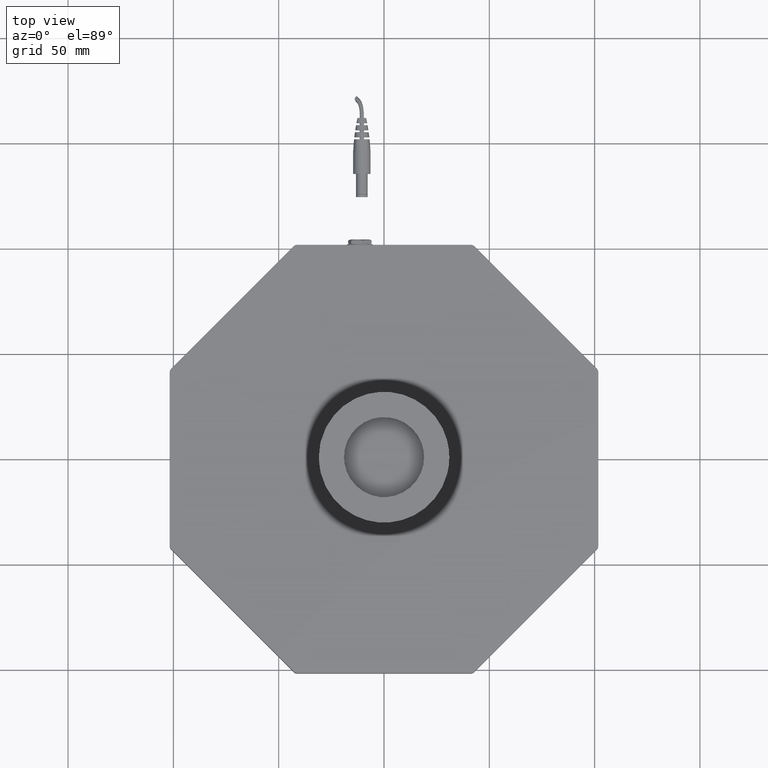
[diagram: clean part render]
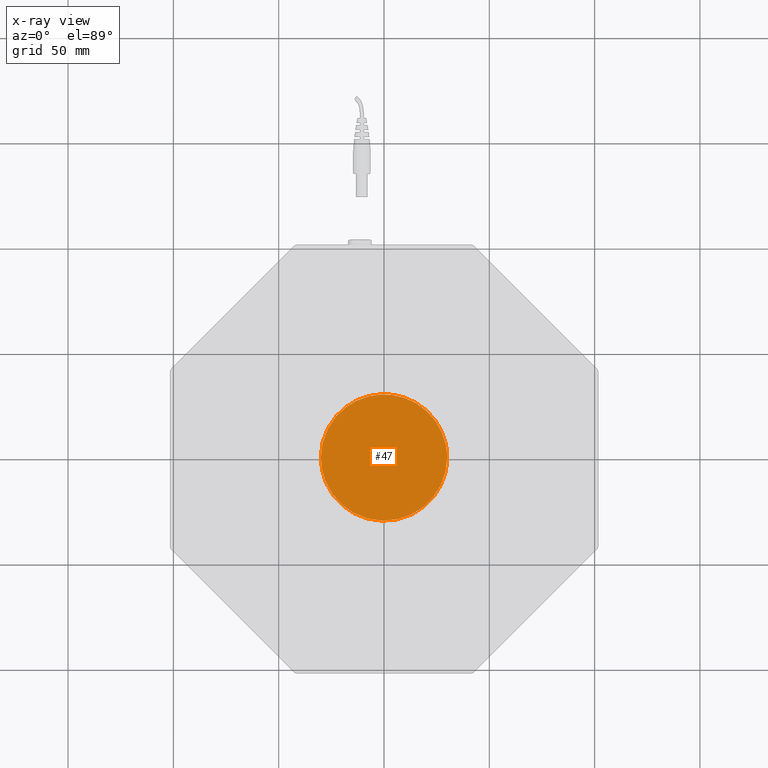
[diagram: x-ray — body ghosted, one internal face saturated and labeled with its STEP entity id]
A machine part, top view, then the same camera in x-ray: the body is ghosted and one INTERNAL B-rep face — a face not visible from any outside direction — is saturated and labeled: STEP entity #47.
In plain terms, the highlighted planar face has unit normal (0, 0, 1).
Its self-contained STEP definition (entity closure, byte-faithful):
#47=ADVANCED_FACE('',(#199,#184),#2082,.T.);
#184=FACE_BOUND('',#337,.T.);
#199=FACE_OUTER_BOUND('',#336,.T.);
#336=EDGE_LOOP('',(#488,#489));
#337=EDGE_LOOP('',(#490));
#488=ORIENTED_EDGE('',*,*,#1175,.F.);
#489=ORIENTED_EDGE('',*,*,#1178,.F.);
#490=ORIENTED_EDGE('',*,*,#1156,.F.);
#1156=EDGE_CURVE('',#1827,#1827,#1727,.T.);
#1175=EDGE_CURVE('',#1840,#1841,#1745,.T.);
#1178=EDGE_CURVE('',#1841,#1840,#1747,.T.);
#1727=(
BOUNDED_CURVE()
B_SPLINE_CURVE(2,(#2406,#2407,#2408,#2409,#2410,#2411,#2412,#2413,#2414),
 .UNSPECIFIED.,.T.,.F.)
B_SPLINE_CURVE_WITH_KNOTS((3,2,2,2,3),(-18.8495559215388,-14.1371669411541,
-9.42477796076938,-4.71238898038469,0.),.UNSPECIFIED.)
CURVE()
GEOMETRIC_REPRESENTATION_ITEM()
RATIONAL_B_SPLINE_CURVE((1.,0.707106781186548,1.,0.707106781186548,1.,0.707106781186548,
1.,0.707106781186548,1.))
REPRESENTATION_ITEM('')
);
#1745=(
BOUNDED_CURVE()
B_SPLINE_CURVE(2,(#2495,#2496,#2497,#2498,#2499),.UNSPECIFIED.,.F.,.F.)
B_SPLINE_CURVE_WITH_KNOTS((3,2,3),(72.1025500068267,119.226439810674,166.35032961452),
 .UNSPECIFIED.)
CURVE()
GEOMETRIC_REPRESENTATION_ITEM()
RATIONAL_B_SPLINE_CURVE((1.,0.707106781186548,1.,0.707106781186548,1.))
REPRESENTATION_ITEM('')
);
#1747=(
BOUNDED_CURVE()
B_SPLINE_CURVE(2,(#2504,#2505,#2506,#2507,#2508,#2509,#2510),
 .UNSPECIFIED.,.F.,.F.)
B_SPLINE_CURVE_WITH_KNOTS((3,2,2,3),(166.35032961452,188.495559215388,235.619449019234,
260.598109222214),.UNSPECIFIED.)
CURVE()
GEOMETRIC_REPRESENTATION_ITEM()
RATIONAL_B_SPLINE_CURVE((1.,0.933121109851426,1.,0.707106781186548,1.,0.914065152691232,
1.))
REPRESENTATION_ITEM('')
);
#1827=VERTEX_POINT('',#2390);
#1840=VERTEX_POINT('',#2403);
#1841=VERTEX_POINT('',#2404);
#2082=PLANE('',#2161);
#2161=AXIS2_PLACEMENT_3D('',#2288,#2224,$);
#2224=DIRECTION('',(0.,0.,1.));
#2288=CARTESIAN_POINT('',(-42.3738065408882,42.3738065408882,53.5129292320498));
#2390=CARTESIAN_POINT('',(2.22429003390215,-2.01309062018668,53.5129292320498));
#2403=CARTESIAN_POINT('',(-30.,6.23952418397821E-15,53.5129292320498));
#2404=CARTESIAN_POINT('',(30.,3.01577002225613E-14,53.5129292320498));
#2406=CARTESIAN_POINT('',(2.22429003390215,-2.01309062018668,53.5129292320498));
#2407=CARTESIAN_POINT('',(4.23738065408882,0.211199413715474,53.5129292320498));
#2408=CARTESIAN_POINT('',(2.01309062018668,2.22429003390215,53.5129292320498));
#2409=CARTESIAN_POINT('',(-0.211199413715474,4.23738065408882,53.5129292320498));
#2410=CARTESIAN_POINT('',(-2.22429003390215,2.01309062018668,53.5129292320498));
#2411=CARTESIAN_POINT('',(-4.23738065408882,-0.211199413715474,53.5129292320498));
#2412=CARTESIAN_POINT('',(-2.01309062018668,-2.22429003390215,53.5129292320498));
#2413=CARTESIAN_POINT('',(0.211199413715474,-4.23738065408882,53.5129292320498));
#2414=CARTESIAN_POINT('',(2.22429003390215,-2.01309062018668,53.5129292320498));
#2495=CARTESIAN_POINT('',(-30.,6.23952418397821E-15,53.5129292320498));
#2496=CARTESIAN_POINT('',(-30.,30.,53.5129292320498));
#2497=CARTESIAN_POINT('',(-1.78781001698491E-14,30.,53.5129292320498));
#2498=CARTESIAN_POINT('',(30.,30.,53.5129292320498));
#2499=CARTESIAN_POINT('',(30.,3.01577002225613E-14,53.5129292320498));
#2504=CARTESIAN_POINT('',(30.,3.01577002225613E-14,53.5129292320498));
#2505=CARTESIAN_POINT('',(30.,-11.5599857997339,53.5129292320498));
#2506=CARTESIAN_POINT('',(22.2429003390215,-20.1309062018668,53.5129292320498));
#2507=CARTESIAN_POINT('',(2.11199413715474,-42.3738065408882,53.5129292320498));
#2508=CARTESIAN_POINT('',(-20.1309062018668,-22.2429003390215,53.5129292320498));
#2509=CARTESIAN_POINT('',(-30.,-13.3108906406682,53.5129292320498));
#2510=CARTESIAN_POINT('',(-30.,6.23952418397821E-15,53.5129292320498));